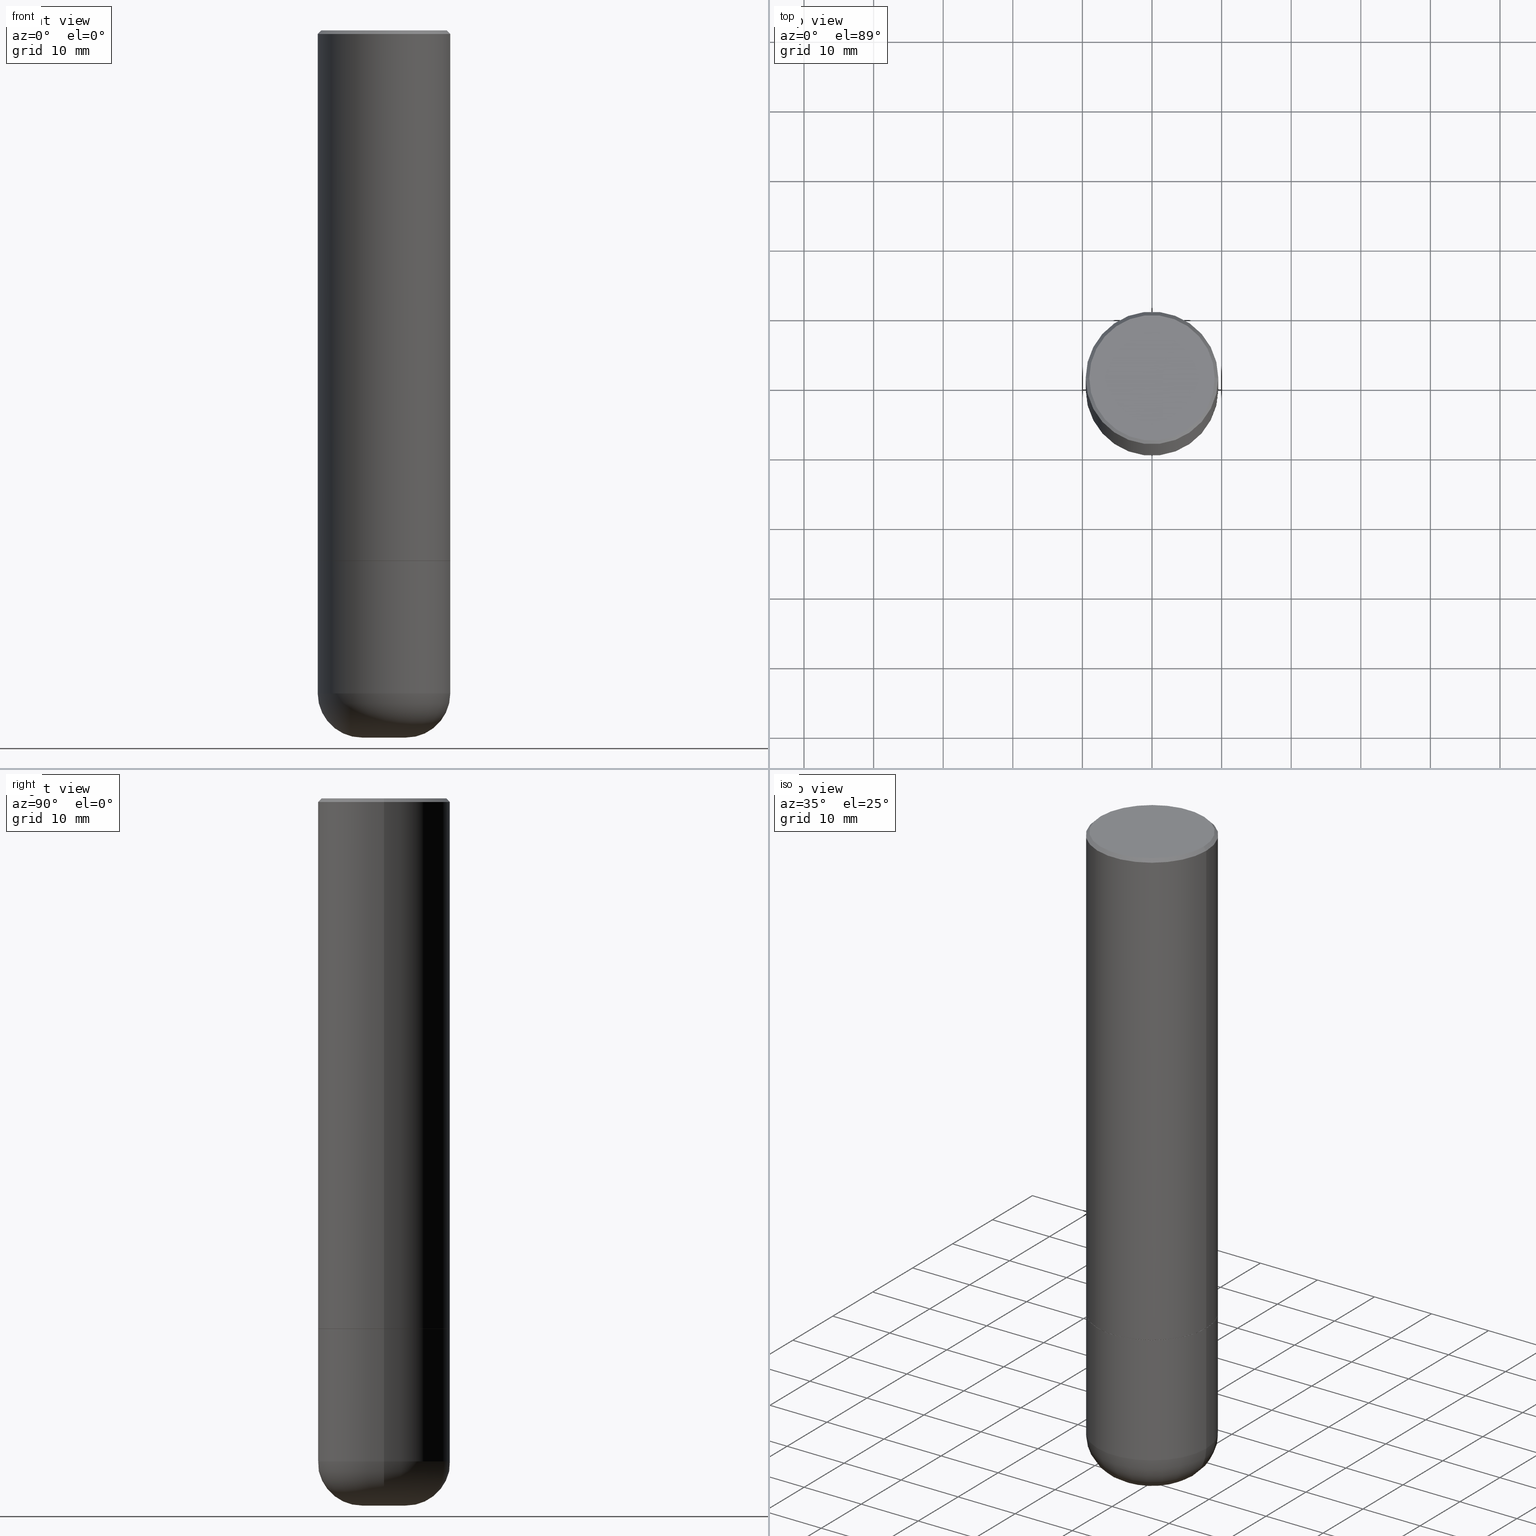
[diagram: canonical four-view strip — front | top / right | iso, engineering-drawing reading convention]
A machine part, canonical four-view strip (front | top / right | iso — engineering-drawing reading convention). The complete STEP part file that produces these views, byte-faithful:
ISO-10303-21;
HEADER;
FILE_DESCRIPTION (( 'STEP AP203' ),
    '1' );
FILE_NAME ('35632.STEP',
    '2022-11-02T20:31:31',
    ( '' ),
    ( '' ),
    'SwSTEP 2.0',
    'SolidWorks 2022',
    '' );
FILE_SCHEMA (( 'CONFIG_CONTROL_DESIGN' ));
ENDSEC;

DATA;
#1 = DIRECTION ( 'NONE',  ( -1.000000000000000000, 6.982962677686264344E-15, 0.000000000000000000 ) ) ;
#2 = EDGE_LOOP ( 'NONE', ( #121, #184, #85 ) ) ;
#3 = FACE_OUTER_BOUND ( 'NONE', #428, .T. ) ;
#4 = DIRECTION ( 'NONE',  ( -2.445468806185136877E-29, 3.491481338843145188E-15, 1.000000000000000000 ) ) ;
#5 = CARTESIAN_POINT ( 'NONE',  ( 7.336406418555408669E-29, -1.047444401652943478E-14, -2.999999999999999556 ) ) ;
#6 = ORIENTED_EDGE ( 'NONE', *, *, #262, .F. ) ;
#7 = EDGE_CURVE ( 'NONE', #183, #138, #66, .T. ) ;
#8 = ORIENTED_EDGE ( 'NONE', *, *, #347, .F. ) ;
#9 = CIRCLE ( 'NONE', #350, 0.3749999999999991673 ) ;
#10 = AXIS2_PLACEMENT_3D ( 'NONE', #463, #148, #72 ) ;
#11 = PERSON_AND_ORGANIZATION ( #105, #33 ) ;
#12 = EDGE_CURVE ( 'NONE', #399, #366, #239, .T. ) ;
#13 = CARTESIAN_POINT ( 'NONE',  ( -0.3749999999999993894, -2.605855821883354597E-15, -2.999000000000000554 ) ) ;
#14 = ORIENTED_EDGE ( 'NONE', *, *, #311, .T. ) ;
#15 = APPLICATION_CONTEXT ( 'configuration controlled 3d designs of mechanical parts and assemblies' ) ;
#16 = ORIENTED_EDGE ( 'NONE', *, *, #95, .T. ) ;
#17 = CARTESIAN_POINT ( 'NONE',  ( 2.478951750578617898E-15, 0.3549999999999990941, -1.237341619044263272E-15 ) ) ;
#18 = DATE_TIME_ROLE ( 'classification_date' ) ;
#19 = DIRECTION ( 'NONE',  ( -0.9993908270190957621, 6.856857904024565937E-15, -0.03489949670249840874 ) ) ;
#20 = APPROVAL_ROLE ( '' ) ;
#21 = DIRECTION ( 'NONE',  ( -1.000000000000000000, 6.982962677686262766E-15, 0.000000000000000000 ) ) ;
#22 = CONICAL_SURFACE ( 'NONE', #103, 0.3739999999999994995, 0.7853981633978239785 ) ;
#23 = DIRECTION ( 'NONE',  ( 1.000000000000000000, -6.982962677686266711E-15, 0.000000000000000000 ) ) ;
#24 = ORIENTED_EDGE ( 'NONE', *, *, #419, .F. ) ;
#25 = CALENDAR_DATE ( 2022, 2, 11 ) ;
#26 = CARTESIAN_POINT ( 'NONE',  ( 7.336406418555408669E-29, -1.047444401652943478E-14, -2.999999999999999556 ) ) ;
#27 = EDGE_CURVE ( 'NONE', #363, #437, #82, .T. ) ;
#28 = VERTEX_POINT ( 'NONE', #474 ) ;
#29 = CARTESIAN_POINT ( 'NONE',  ( -0.3749999999999997780, 2.664535259100374119E-15, -1.844600658845588477E-29 ) ) ;
#30 = CIRCLE ( 'NONE', #298, 0.3749999999999995004 ) ;
#31 = VECTOR ( 'NONE', #19, 39.37007874015748854 ) ;
#32 = DIRECTION ( 'NONE',  ( -2.445468806185136597E-29, 3.491481338843145583E-15, 1.000000000000000000 ) ) ;
#33 = ORGANIZATION ( 'UNSPECIFIED', 'UNSPECIFIED', '' ) ;
#34 = EDGE_CURVE ( 'NONE', #363, #290, #285, .T. ) ;
#35 = DIRECTION ( 'NONE',  ( 1.000000000000000000, -6.982962677686269077E-15, 0.000000000000000000 ) ) ;
#36 = ORIENTED_EDGE ( 'NONE', *, *, #412, .F. ) ;
#37 = CARTESIAN_POINT ( 'NONE',  ( 9.781021626775434250E-29, -1.396470664370530441E-14, -3.999650947105539256 ) ) ;
#38 = AXIS2_PLACEMENT_3D ( 'NONE', #387, #113, #461 ) ;
#39 = ADVANCED_FACE ( 'NONE', ( #249 ), #238, .T. ) ;
#40 = DIRECTION ( 'NONE',  ( -2.445468806185136597E-29, 3.491481338843145583E-15, 1.000000000000000000 ) ) ;
#41 = CARTESIAN_POINT ( 'NONE',  ( 9.781875224740546387E-29, -1.396592535537258233E-14, -4.000000000000000000 ) ) ;
#42 = DIRECTION ( 'NONE',  ( 2.445468806185136597E-29, -3.491481338843145583E-15, -1.000000000000000000 ) ) ;
#43 = DIRECTION ( 'NONE',  ( 1.000000000000000000, -6.982962677686264344E-15, 0.000000000000000000 ) ) ;
#44 = CIRCLE ( 'NONE', #123, 0.1228183661254081405 ) ;
#45 = PLANE ( 'NONE',  #460 ) ;
#46 = EDGE_LOOP ( 'NONE', ( #56, #445, #323, #158 ) ) ;
#47 = COORDINATED_UNIVERSAL_TIME_OFFSET ( 5, 0, .BEHIND. ) ;
#48 = DIRECTION ( 'NONE',  ( -1.000000000000000000, 6.982962677686265922E-15, -4.876176775795935793E-29 ) ) ;
#49 = PERSON_AND_ORGANIZATION_ROLE ( 'design_owner' ) ;
#50 = APPROVAL_DATE_TIME ( #376, #447 ) ;
#51 = CARTESIAN_POINT ( 'NONE',  ( 4.890937612370324831E-31, -6.982962677686364332E-17, -0.02000000000000020858 ) ) ;
#52 = ORIENTED_EDGE ( 'NONE', *, *, #233, .T. ) ;
#53 = DIRECTION ( 'NONE',  ( -2.445468806185136597E-29, 3.491481338843145583E-15, 1.000000000000000000 ) ) ;
#54 = VERTEX_POINT ( 'NONE', #442 ) ;
#55 = CLOSED_SHELL ( 'NONE', ( #39, #342, #332, #488, #296, #389, #325, #378 ) ) ;
#56 = ORIENTED_EDGE ( 'NONE', *, *, #95, .F. ) ;
#57 = CONICAL_SURFACE ( 'NONE', #162, 0.08282086612540803805, 1.535889741755012583 ) ;
#58 = EDGE_CURVE ( 'NONE', #437, #290, #370, .T. ) ;
#59 = DIRECTION ( 'NONE',  ( -2.445468806185136597E-29, 3.491481338843145583E-15, 1.000000000000000000 ) ) ;
#60 = VERTEX_POINT ( 'NONE', #324 ) ;
#61 = DATE_AND_TIME ( #204, #155 ) ;
#62 = DIRECTION ( 'NONE',  ( -2.445468806185136597E-29, 3.491481338843145583E-15, 1.000000000000000000 ) ) ;
#63 = DATE_AND_TIME ( #25, #331 ) ;
#64 = DIRECTION ( 'NONE',  ( 1.000000000000000000, -6.982962677686266711E-15, 0.000000000000000000 ) ) ;
#65 = EDGE_CURVE ( 'NONE', #265, #366, #176, .T. ) ;
#66 = CIRCLE ( 'NONE', #339, 0.3749999999999991673 ) ;
#67 = AXIS2_PLACEMENT_3D ( 'NONE', #266, #344, #1 ) ;
#68 = CARTESIAN_POINT ( 'NONE',  ( 7.336406418555408669E-29, -1.047444401652943478E-14, -2.999999999999999556 ) ) ;
#69 = ORIENTED_EDGE ( 'NONE', *, *, #65, .F. ) ;
#70 = DIRECTION ( 'NONE',  ( 1.000000000000000000, -6.982962677686269077E-15, 0.000000000000000000 ) ) ;
#71 = ORIENTED_EDGE ( 'NONE', *, *, #217, .T. ) ;
#72 = DIRECTION ( 'NONE',  ( 1.000000000000000000, -6.982962677686266711E-15, 0.000000000000000000 ) ) ;
#73 = DIRECTION ( 'NONE',  ( 1.000000000000000000, -6.982962677686265133E-15, 4.876231632512000515E-29 ) ) ;
#74 = EDGE_CURVE ( 'NONE', #424, #54, #431, .T. ) ;
#75 = AXIS2_PLACEMENT_3D ( 'NONE', #414, #411, #142 ) ;
#76 = APPLICATION_PROTOCOL_DEFINITION ( 'international standard', 'config_control_design', 1994, #247 ) ;
#77 = DIRECTION ( 'NONE',  ( -2.438088387897960049E-29, 3.491481338843145188E-15, 1.000000000000000000 ) ) ;
#78 = DIRECTION ( 'NONE',  ( -0.7071067811868130271, 7.493145998871311837E-15, 0.7071067811862817853 ) ) ;
#79 = EDGE_CURVE ( 'NONE', #366, #399, #30, .T. ) ;
#80 = DIRECTION ( 'NONE',  ( 1.000000000000000000, -6.982962677686262766E-15, 0.000000000000000000 ) ) ;
#81 = AXIS2_PLACEMENT_3D ( 'NONE', #487, #145, #137 ) ;
#82 = LINE ( 'NONE', #165, #31 ) ;
#83 = CARTESIAN_POINT ( 'NONE',  ( 0.000000000000000000, 0.000000000000000000, 0.000000000000000000 ) ) ;
#84 = PLANE ( 'NONE',  #263 ) ;
#85 = ORIENTED_EDGE ( 'NONE', *, *, #58, .F. ) ;
#86 = MECHANICAL_CONTEXT ( 'NONE', #15, 'mechanical' ) ;
#87 = DIRECTION ( 'NONE',  ( -1.000000000000000000, 6.982962677686266711E-15, 0.000000000000000000 ) ) ;
#88 = DIRECTION ( 'NONE',  ( 1.000000000000000000, -6.982962677686269077E-15, 0.000000000000000000 ) ) ;
#89 = APPLICATION_PROTOCOL_DEFINITION ( 'international standard', 'config_control_design', 1994, #15 ) ;
#90 = AXIS2_PLACEMENT_3D ( 'NONE', #157, #77, #190 ) ;
#91 = LOCAL_TIME ( 16, 31, 31.00000000000000000, #47 ) ;
#92 = EDGE_CURVE ( 'NONE', #365, #28, #229, .T. ) ;
#93 = FACE_OUTER_BOUND ( 'NONE', #310, .T. ) ;
#94 = ORIENTED_EDGE ( 'NONE', *, *, #79, .F. ) ;
#95 = EDGE_CURVE ( 'NONE', #444, #265, #425, .T. ) ;
#96 = ORIENTED_EDGE ( 'NONE', *, *, #169, .F. ) ;
#97 = DIRECTION ( 'NONE',  ( 1.000000000000000000, -6.982962677686269077E-15, 0.000000000000000000 ) ) ;
#98 = CARTESIAN_POINT ( 'NONE',  ( -0.3749999999999991673, 2.548781377355480407E-15, -0.02000000000000020858 ) ) ;
#99 = CC_DESIGN_PERSON_AND_ORGANIZATION_ASSIGNMENT ( #192, #465, ( #491 ) ) ;
#100 = DIRECTION ( 'NONE',  ( 1.000000000000000000, -6.982962677686264344E-15, 0.000000000000000000 ) ) ;
#101 = CIRCLE ( 'NONE', #379, 0.3750000000000000555 ) ;
#102 = ORIENTED_EDGE ( 'NONE', *, *, #393, .F. ) ;
#103 = AXIS2_PLACEMENT_3D ( 'NONE', #196, #172, #97 ) ;
#104 = DIRECTION ( 'NONE',  ( -2.445468806185136877E-29, 3.491481338843145188E-15, 1.000000000000000000 ) ) ;
#105 = PERSON ( 'UNSPECIFIED', 'UNSPECIFIED', 'UNSPECIFIED', ('UNSPECIFIED'), ('UNSPECIFIED'), ('UNSPECIFIED') ) ;
#106 = CARTESIAN_POINT ( 'NONE',  ( 0.3749999999999992784, -2.618611004132345283E-15, 1.828566290923472279E-29 ) ) ;
#107 = CARTESIAN_POINT ( 'NONE',  ( 7.333960949749226429E-29, -1.047095253519059492E-14, -2.999000000000000554 ) ) ;
#108 = ORIENTED_EDGE ( 'NONE', *, *, #236, .F. ) ;
#109 = CARTESIAN_POINT ( 'NONE',  ( 0.3749999999999991673, -2.642516375941182112E-15, -0.02000000000000020858 ) ) ;
#110 = CIRCLE ( 'NONE', #291, 0.08282086612540803805 ) ;
#111 = CC_DESIGN_APPROVAL ( #454, ( #292 ) ) ;
#112 = DIRECTION ( 'NONE',  ( -2.445468806185136597E-29, 3.491481338843145583E-15, 1.000000000000000000 ) ) ;
#113 = DIRECTION ( 'NONE',  ( 2.445468806185136597E-29, -3.491481338843145583E-15, -1.000000000000000000 ) ) ;
#114 = DIRECTION ( 'NONE',  ( 1.000000000000000000, -6.982962677686267499E-15, 4.876176775795935232E-29 ) ) ;
#115 = CC_DESIGN_SECURITY_CLASSIFICATION ( #292, ( #491 ) ) ;
#116 = FACE_OUTER_BOUND ( 'NONE', #2, .T. ) ;
#117 = ADVANCED_FACE ( 'NONE', ( #287 ), #470, .T. ) ;
#118 = CYLINDRICAL_SURFACE ( 'NONE', #330, 0.3749999999999992784 ) ;
#119 = FACE_OUTER_BOUND ( 'NONE', #275, .T. ) ;
#120 = VERTEX_POINT ( 'NONE', #131 ) ;
#121 = ORIENTED_EDGE ( 'NONE', *, *, #27, .F. ) ;
#122 = VECTOR ( 'NONE', #258, 39.37007874015748143 ) ;
#123 = AXIS2_PLACEMENT_3D ( 'NONE', #400, #53, #43 ) ;
#124 = CALENDAR_DATE ( 2022, 2, 11 ) ;
#125 = APPROVAL_DATE_TIME ( #195, #336 ) ;
#126 = DIRECTION ( 'NONE',  ( -1.000000000000000000, 6.982962677686265922E-15, -4.876176775795935793E-29 ) ) ;
#127 = ORIENTED_EDGE ( 'NONE', *, *, #262, .T. ) ;
#128 = CIRCLE ( 'NONE', #10, 0.3749999999999995004 ) ;
#129 = ORIENTED_EDGE ( 'NONE', *, *, #256, .F. ) ;
#130 = ADVANCED_FACE ( 'NONE', ( #375 ), #385, .T. ) ;
#131 = CARTESIAN_POINT ( 'NONE',  ( 0.3750000000000000555, -1.571169926102186855E-14, -3.750009519233957089 ) ) ;
#132 = COORDINATED_UNIVERSAL_TIME_OFFSET ( 5, 0, .BEHIND. ) ;
#133 = CARTESIAN_POINT ( 'NONE',  ( -0.1228183661254081405, -1.176090068723919562E-14, -4.000000000000000000 ) ) ;
#134 = ORIENTED_EDGE ( 'NONE', *, *, #74, .F. ) ;
#135 = LINE ( 'NONE', #210, #231 ) ;
#136 = SHAPE_DEFINITION_REPRESENTATION ( #462, #458 ) ;
#137 = DIRECTION ( 'NONE',  ( 1.000000000000000000, -6.982962677686262766E-15, 0.000000000000000000 ) ) ;
#138 = VERTEX_POINT ( 'NONE', #367 ) ;
#139 = FACE_OUTER_BOUND ( 'NONE', #481, .T. ) ;
#140 = VECTOR ( 'NONE', #4, 39.37007874015748143 ) ;
#141 = ORIENTED_EDGE ( 'NONE', *, *, #412, .T. ) ;
#142 = DIRECTION ( 'NONE',  ( 1.000000000000000000, -6.982962677686265922E-15, 4.883557194083113462E-29 ) ) ;
#143 = ORIENTED_EDGE ( 'NONE', *, *, #359, .T. ) ;
#144 = ORIENTED_EDGE ( 'NONE', *, *, #393, .T. ) ;
#145 = DIRECTION ( 'NONE',  ( -2.445468806185136597E-29, 3.491481338843145583E-15, 1.000000000000000000 ) ) ;
#146 = CLOSED_SHELL ( 'NONE', ( #242, #117, #152, #301, #453, #383, #273, #130, #303 ) ) ;
#147 = AXIS2_PLACEMENT_3D ( 'NONE', #480, #171, #100 ) ;
#148 = DIRECTION ( 'NONE',  ( -2.445468806185136597E-29, 3.491481338843145583E-15, 1.000000000000000000 ) ) ;
#149 = DIRECTION ( 'NONE',  ( 0.9999619230641714207, -6.890705306874825328E-15, -0.008726535498369011531 ) ) ;
#150 = ORIENTED_EDGE ( 'NONE', *, *, #58, .T. ) ;
#151 = DIRECTION ( 'NONE',  ( -1.000000000000000000, 6.982962677686262766E-15, 0.000000000000000000 ) ) ;
#152 = ADVANCED_FACE ( 'NONE', ( #449 ), #328, .T. ) ;
#153 = DIRECTION ( 'NONE',  ( 1.000000000000000000, -6.982962677686266711E-15, 0.000000000000000000 ) ) ;
#154 = CONICAL_SURFACE ( 'NONE', #67, 0.1228183661254081405, 1.562069680534929894 ) ;
#155 = LOCAL_TIME ( 16, 31, 31.00000000000000000, #407 ) ;
#156 = PRODUCT_RELATED_PRODUCT_CATEGORY ( 'detail', '', ( #245 ) ) ;
#157 = CARTESIAN_POINT ( 'NONE',  ( 7.336406418555408669E-29, -1.047444401652943478E-14, -2.999999999999999556 ) ) ;
#158 = ORIENTED_EDGE ( 'NONE', *, *, #189, .F. ) ;
#159 = EDGE_LOOP ( 'NONE', ( #360, #141, #440, #338 ) ) ;
#160 = EDGE_LOOP ( 'NONE', ( #8, #143, #144, #134 ) ) ;
#161 = VECTOR ( 'NONE', #335, 39.37007874015748854 ) ;
#162 = AXIS2_PLACEMENT_3D ( 'NONE', #307, #274, #151 ) ;
#163 = EDGE_CURVE ( 'NONE', #365, #138, #439, .T. ) ;
#164 = DIRECTION ( 'NONE',  ( 1.000000000000000000, 0.000000000000000000, 0.000000000000000000 ) ) ;
#165 = CARTESIAN_POINT ( 'NONE',  ( -0.08282086612540803805, -1.338637162661792959E-14, -3.999650947105539256 ) ) ;
#166 = COORDINATED_UNIVERSAL_TIME_OFFSET ( 5, 0, .BEHIND. ) ;
#167 = CARTESIAN_POINT ( 'NONE',  ( -0.08282086612540803805, -1.338637162661792959E-14, -3.999650947105539256 ) ) ;
#168 = ORIENTED_EDGE ( 'NONE', *, *, #321, .T. ) ;
#169 = EDGE_CURVE ( 'NONE', #54, #183, #446, .T. ) ;
#170 = APPROVAL_PERSON_ORGANIZATION ( #234, #336, #381 ) ;
#171 = DIRECTION ( 'NONE',  ( -2.445468806185136597E-29, 3.491481338843145583E-15, 1.000000000000000000 ) ) ;
#172 = DIRECTION ( 'NONE',  ( -2.445468806185136597E-29, 3.491481338843145583E-15, 1.000000000000000000 ) ) ;
#173 = APPROVAL_ROLE ( '' ) ;
#174 = DIRECTION ( 'NONE',  ( -2.445468806185136597E-29, 3.491481338843145583E-15, 1.000000000000000000 ) ) ;
#175 = APPROVAL_DATE_TIME ( #63, #454 ) ;
#176 = LINE ( 'NONE', #29, #417 ) ;
#177 = CARTESIAN_POINT ( 'NONE',  ( 7.336406418555408669E-29, -1.047444401652943478E-14, -2.999999999999999556 ) ) ;
#178 = DATE_TIME_ROLE ( 'creation_date' ) ;
#179 = CIRCLE ( 'NONE', #197, 0.3739999999999994995 ) ;
#180 = CARTESIAN_POINT ( 'NONE',  ( -0.1228183661254081405, -1.310828928858444983E-14, -4.000000000000000000 ) ) ;
#181 = ORIENTED_EDGE ( 'NONE', *, *, #198, .F. ) ;
#182 = DIRECTION ( 'NONE',  ( -2.445468806185136597E-29, 3.491481338843145583E-15, 1.000000000000000000 ) ) ;
#183 = VERTEX_POINT ( 'NONE', #410 ) ;
#184 = ORIENTED_EDGE ( 'NONE', *, *, #34, .T. ) ;
#185 = LINE ( 'NONE', #418, #443 ) ;
#186 =( GEOMETRIC_REPRESENTATION_CONTEXT ( 3 ) GLOBAL_UNCERTAINTY_ASSIGNED_CONTEXT ( ( #203 ) ) GLOBAL_UNIT_ASSIGNED_CONTEXT ( ( #240, #271, #316 ) ) REPRESENTATION_CONTEXT ( 'NONE', 'WORKASPACE' ) );
#187 = FACE_OUTER_BOUND ( 'NONE', #471, .T. ) ;
#188 = LINE ( 'NONE', #422, #315 ) ;
#189 = EDGE_CURVE ( 'NONE', #265, #120, #101, .T. ) ;
#190 = DIRECTION ( 'NONE',  ( 1.000000000000000000, -6.982962677686265922E-15, 4.876176775795935793E-29 ) ) ;
#191 = CARTESIAN_POINT ( 'NONE',  ( 0.000000000000000000, 0.000000000000000000, 0.000000000000000000 ) ) ;
#192 = PERSON_AND_ORGANIZATION ( #105, #33 ) ;
#193 = CIRCLE ( 'NONE', #395, 0.2499999999999998612 ) ;
#194 = ORIENTED_EDGE ( 'NONE', *, *, #79, .T. ) ;
#195 = DATE_AND_TIME ( #124, #91 ) ;
#196 = CARTESIAN_POINT ( 'NONE',  ( 7.336406418555408669E-29, -1.047444401652943478E-14, -2.999999999999999556 ) ) ;
#197 = AXIS2_PLACEMENT_3D ( 'NONE', #5, #464, #88 ) ;
#198 = EDGE_CURVE ( 'NONE', #437, #444, #213, .T. ) ;
#199 = FACE_OUTER_BOUND ( 'NONE', #358, .T. ) ;
#200 = DIRECTION ( 'NONE',  ( -2.445468806185136597E-29, 3.491481338843145583E-15, 1.000000000000000000 ) ) ;
#201 = LENGTH_MEASURE_WITH_UNIT ( LENGTH_MEASURE( 0.02539999999999999897 ), #237 );
#202 = ORIENTED_EDGE ( 'NONE', *, *, #355, .F. ) ;
#203 = UNCERTAINTY_MEASURE_WITH_UNIT (LENGTH_MEASURE( 1.000000000000000082E-05 ), #240, 'distance_accuracy_value', 'NONE');
#204 = CALENDAR_DATE ( 2022, 2, 11 ) ;
#205 = DIRECTION ( 'NONE',  ( -2.445468806185136597E-29, 3.491481338843145583E-15, 1.000000000000000000 ) ) ;
#206 = AXIS2_PLACEMENT_3D ( 'NONE', #216, #209, #405 ) ;
#207 = LOCAL_TIME ( 16, 31, 31.00000000000000000, #166 ) ;
#208 = ORIENTED_EDGE ( 'NONE', *, *, #12, .T. ) ;
#209 = DIRECTION ( 'NONE',  ( 7.105427357601001859E-15, 1.000000000000000000, -3.491481338843145583E-15 ) ) ;
#210 = CARTESIAN_POINT ( 'NONE',  ( 0.3739999999999994995, -1.308607205798409720E-14, -2.999999999999999556 ) ) ;
#211 = ORIENTED_EDGE ( 'NONE', *, *, #92, .F. ) ;
#212 = APPROVAL_STATUS ( 'not_yet_approved' ) ;
#213 = LINE ( 'NONE', #180, #161 ) ;
#214 = AXIS2_PLACEMENT_3D ( 'NONE', #476, #62, #369 ) ;
#215 = CONICAL_SURFACE ( 'NONE', #306, 0.3749999999999991673, 0.7853981633974445042 ) ;
#216 = CARTESIAN_POINT ( 'NONE',  ( -0.1250000000000002498, -1.220490983718939015E-14, -3.750009519233957089 ) ) ;
#217 = EDGE_CURVE ( 'NONE', #402, #250, #441, .T. ) ;
#218 = CARTESIAN_POINT ( 'NONE',  ( 0.000000000000000000, 0.000000000000000000, 0.000000000000000000 ) ) ;
#219 = CALENDAR_DATE ( 2022, 2, 11 ) ;
#220 = EDGE_LOOP ( 'NONE', ( #232, #261, #293, #432 ) ) ;
#221 = DIMENSIONAL_EXPONENTS ( 1.000000000000000000, 0.000000000000000000, 0.000000000000000000, 0.000000000000000000, 0.000000000000000000, 0.000000000000000000, 0.000000000000000000 ) ;
#222 = MANIFOLD_SOLID_BREP ( 'Body-Move/Copy2[2]', #55 ) ;
#223 = FACE_OUTER_BOUND ( 'NONE', #281, .T. ) ;
#224 = AXIS2_PLACEMENT_3D ( 'NONE', #68, #373, #35 ) ;
#225 = AXIS2_PLACEMENT_3D ( 'NONE', #333, #205, #448 ) ;
#226 = PLANE ( 'NONE',  #90 ) ;
#227 = CARTESIAN_POINT ( 'NONE',  ( 4.890937612370324831E-31, -6.982962677686364332E-17, -0.02000000000000020858 ) ) ;
#228 = CARTESIAN_POINT ( 'NONE',  ( 0.1250000000000002498, -1.396595859160030187E-14, -3.750009519233957089 ) ) ;
#229 = CIRCLE ( 'NONE', #214, 0.3549999999999990941 ) ;
#230 = FACE_OUTER_BOUND ( 'NONE', #220, .T. ) ;
#231 = VECTOR ( 'NONE', #368, 39.37007874015748854 ) ;
#232 = ORIENTED_EDGE ( 'NONE', *, *, #321, .F. ) ;
#233 = EDGE_CURVE ( 'NONE', #138, #183, #9, .T. ) ;
#234 = PERSON_AND_ORGANIZATION ( #105, #33 ) ;
#235 = CARTESIAN_POINT ( 'NONE',  ( 2.618611004132419436E-15, 0.3749999999999890088, -3.000000000000000888 ) ) ;
#236 = EDGE_CURVE ( 'NONE', #120, #399, #421, .T. ) ;
#237 =( LENGTH_UNIT ( ) NAMED_UNIT ( * ) SI_UNIT ( $, .METRE. ) );
#238 = CONICAL_SURFACE ( 'NONE', #313, 0.3739999999999994995, 0.7853981633978239785 ) ;
#239 = CIRCLE ( 'NONE', #345, 0.3749999999999995004 ) ;
#240 =( CONVERSION_BASED_UNIT ( 'INCH', #201 ) LENGTH_UNIT ( ) NAMED_UNIT ( #221 ) );
#241 = CONICAL_SURFACE ( 'NONE', #361, 0.08282086612540803805, 1.535889741755012583 ) ;
#242 = ADVANCED_FACE ( 'NONE', ( #270 ), #154, .F. ) ;
#243 = CC_DESIGN_PERSON_AND_ORGANIZATION_ASSIGNMENT ( #438, #403, ( #292 ) ) ;
#244 = DIRECTION ( 'NONE',  ( 1.000000000000000000, -6.982962677686266711E-15, 0.000000000000000000 ) ) ;
#245 = PRODUCT ( '35632', '35632', '', ( #86 ) ) ;
#246 = ORIENTED_EDGE ( 'NONE', *, *, #397, .F. ) ;
#247 = APPLICATION_CONTEXT ( 'configuration controlled 3d designs of mechanical parts and assemblies' ) ;
#248 = CARTESIAN_POINT ( 'NONE',  ( 9.781021626775434250E-29, -1.396470664370530441E-14, -3.999650947105539256 ) ) ;
#249 = FACE_OUTER_BOUND ( 'NONE', #435, .T. ) ;
#250 = VERTEX_POINT ( 'NONE', #455 ) ;
#251 = CARTESIAN_POINT ( 'NONE',  ( 9.170531302183963183E-29, -1.309308825688951696E-14, -3.750009519233957089 ) ) ;
#252 = PERSON_AND_ORGANIZATION ( #105, #33 ) ;
#253 = ORIENTED_EDGE ( 'NONE', *, *, #217, .F. ) ;
#254 = AXIS2_PLACEMENT_3D ( 'NONE', #492, #304, #73 ) ;
#255 = ORIENTED_EDGE ( 'NONE', *, *, #279, .F. ) ;
#256 = EDGE_CURVE ( 'NONE', #424, #138, #188, .T. ) ;
#257 = DIRECTION ( 'NONE',  ( 1.000000000000000000, -6.982962677686266711E-15, 0.000000000000000000 ) ) ;
#258 = DIRECTION ( 'NONE',  ( -2.445468806185136877E-29, 3.491481338843145188E-15, 1.000000000000000000 ) ) ;
#259 = CARTESIAN_POINT ( 'NONE',  ( 9.170531302183963183E-29, -1.309308825688951696E-14, -3.750009519233957089 ) ) ;
#260 = ORIENTED_EDGE ( 'NONE', *, *, #27, .T. ) ;
#261 = ORIENTED_EDGE ( 'NONE', *, *, #279, .T. ) ;
#262 = EDGE_CURVE ( 'NONE', #54, #424, #128, .T. ) ;
#263 = AXIS2_PLACEMENT_3D ( 'NONE', #235, #280, #48 ) ;
#264 = DIRECTION ( 'NONE',  ( -2.445468806185136597E-29, 3.491481338843145583E-15, 1.000000000000000000 ) ) ;
#265 = VERTEX_POINT ( 'NONE', #384 ) ;
#266 = CARTESIAN_POINT ( 'NONE',  ( 9.781875224740546387E-29, -1.396592535537258233E-14, -4.000000000000000000 ) ) ;
#267 = CARTESIAN_POINT ( 'NONE',  ( 0.000000000000000000, 0.000000000000000000, 0.000000000000000000 ) ) ;
#268 = ORIENTED_EDGE ( 'NONE', *, *, #479, .T. ) ;
#269 = CIRCLE ( 'NONE', #147, 0.1228183661254081405 ) ;
#270 = FACE_OUTER_BOUND ( 'NONE', #485, .T. ) ;
#271 =( NAMED_UNIT ( * ) PLANE_ANGLE_UNIT ( ) SI_UNIT ( $, .RADIAN. ) );
#272 = CARTESIAN_POINT ( 'NONE',  ( -0.3739999999999994995, -7.817014184786664031E-15, -2.999999999999999556 ) ) ;
#273 = ADVANCED_FACE ( 'NONE', ( #223 ), #380, .T. ) ;
#274 = DIRECTION ( 'NONE',  ( 2.445468806185136597E-29, -3.491481338843145583E-15, -1.000000000000000000 ) ) ;
#275 = EDGE_LOOP ( 'NONE', ( #208, #194 ) ) ;
#276 = AXIS2_PLACEMENT_3D ( 'NONE', #218, #32, #478 ) ;
#277 = APPROVAL_PERSON_ORGANIZATION ( #252, #447, #20 ) ;
#278 = ORIENTED_EDGE ( 'NONE', *, *, #74, .T. ) ;
#279 = EDGE_CURVE ( 'NONE', #290, #437, #110, .T. ) ;
#280 = DIRECTION ( 'NONE',  ( 2.438088387897960049E-29, -3.491481338843145188E-15, -1.000000000000000000 ) ) ;
#281 = EDGE_LOOP ( 'NONE', ( #69, #354, #477, #94 ) ) ;
#282 = AXIS2_PLACEMENT_3D ( 'NONE', #41, #42, #348 ) ;
#283 = ORIENTED_EDGE ( 'NONE', *, *, #397, .T. ) ;
#284 = FACE_OUTER_BOUND ( 'NONE', #160, .T. ) ;
#285 = LINE ( 'NONE', #352, #467 ) ;
#286 = ORIENTED_EDGE ( 'NONE', *, *, #12, .F. ) ;
#287 = FACE_OUTER_BOUND ( 'NONE', #288, .T. ) ;
#288 = EDGE_LOOP ( 'NONE', ( #268, #16, #246, #202 ) ) ;
#289 = DIRECTION ( 'NONE',  ( 1.000000000000000000, -6.982962677686265922E-15, 4.883557194083113462E-29 ) ) ;
#290 = VERTEX_POINT ( 'NONE', #300 ) ;
#291 = AXIS2_PLACEMENT_3D ( 'NONE', #37, #40, #80 ) ;
#292 = SECURITY_CLASSIFICATION ( '', '', #482 ) ;
#293 = ORIENTED_EDGE ( 'NONE', *, *, #198, .T. ) ;
#294 = DIRECTION ( 'NONE',  ( -0.7071067811865447972, 2.468850131082228662E-15, -0.7071067811865501263 ) ) ;
#295 = DIRECTION ( 'NONE',  ( -2.445468806185136597E-29, 3.491481338843145583E-15, 1.000000000000000000 ) ) ;
#296 = ADVANCED_FACE ( 'NONE', ( #187 ), #118, .T. ) ;
#297 = CC_DESIGN_PERSON_AND_ORGANIZATION_ASSIGNMENT ( #429, #396, ( #469 ) ) ;
#298 = AXIS2_PLACEMENT_3D ( 'NONE', #177, #408, #257 ) ;
#299 = VECTOR ( 'NONE', #475, 39.37007874015748854 ) ;
#300 = CARTESIAN_POINT ( 'NONE',  ( 0.08282086612540803805, -1.453289902993236871E-14, -3.999650947105539256 ) ) ;
#301 = ADVANCED_FACE ( 'NONE', ( #116 ), #57, .F. ) ;
#302 = FACE_OUTER_BOUND ( 'NONE', #312, .T. ) ;
#303 = ADVANCED_FACE ( 'NONE', ( #230 ), #351, .F. ) ;
#304 = DIRECTION ( 'NONE',  ( -2.445468806185136597E-29, 3.491481338843145583E-15, 1.000000000000000000 ) ) ;
#305 = CIRCLE ( 'NONE', #254, 0.3549999999999990941 ) ;
#306 = AXIS2_PLACEMENT_3D ( 'NONE', #322, #430, #87 ) ;
#307 = CARTESIAN_POINT ( 'NONE',  ( 9.781021626775434250E-29, -1.396470664370530441E-14, -3.999650947105539256 ) ) ;
#308 = CC_DESIGN_APPROVAL ( #447, ( #491 ) ) ;
#309 = LINE ( 'NONE', #272, #433 ) ;
#310 = EDGE_LOOP ( 'NONE', ( #371, #260, #255 ) ) ;
#311 = EDGE_CURVE ( 'NONE', #28, #365, #305, .T. ) ;
#312 = EDGE_LOOP ( 'NONE', ( #253, #451 ) ) ;
#313 = AXIS2_PLACEMENT_3D ( 'NONE', #26, #182, #70 ) ;
#314 = CARTESIAN_POINT ( 'NONE',  ( 9.773948919231959762E-29, -1.395460869179494729E-14, -3.996758778730467032 ) ) ;
#315 = VECTOR ( 'NONE', #415, 39.37007874015748143 ) ;
#316 =( NAMED_UNIT ( * ) SI_UNIT ( $, .STERADIAN. ) SOLID_ANGLE_UNIT ( ) );
#317 = ORIENTED_EDGE ( 'NONE', *, *, #256, .T. ) ;
#318 = CALENDAR_DATE ( 2022, 2, 11 ) ;
#319 = DIRECTION ( 'NONE',  ( 2.438088387897960049E-29, -3.491481338843145188E-15, -1.000000000000000000 ) ) ;
#320 = AXIS2_PLACEMENT_3D ( 'NONE', #259, #264, #289 ) ;
#321 = EDGE_CURVE ( 'NONE', #290, #60, #185, .T. ) ;
#322 = CARTESIAN_POINT ( 'NONE',  ( 4.890937612370324831E-31, -6.982962677686364332E-17, -0.02000000000000020858 ) ) ;
#323 = ORIENTED_EDGE ( 'NONE', *, *, #355, .T. ) ;
#324 = CARTESIAN_POINT ( 'NONE',  ( 0.1228183661254081405, -1.482356142216071483E-14, -4.000000000000000000 ) ) ;
#325 = ADVANCED_FACE ( 'NONE', ( #302 ), #226, .F. ) ;
#326 = DIRECTION ( 'NONE',  ( 1.000000000000000000, -6.982962677686266711E-15, 0.000000000000000000 ) ) ;
#327 = DATE_AND_TIME ( #318, #207 ) ;
#328 = CYLINDRICAL_SURFACE ( 'NONE', #276, 0.3749999999999997780 ) ;
#329 = APPROVAL_STATUS ( 'not_yet_approved' ) ;
#330 = AXIS2_PLACEMENT_3D ( 'NONE', #340, #343, #114 ) ;
#331 = LOCAL_TIME ( 16, 31, 31.00000000000000000, #364 ) ;
#332 = ADVANCED_FACE ( 'NONE', ( #456 ), #372, .T. ) ;
#333 = CARTESIAN_POINT ( 'NONE',  ( 9.170531302183963183E-29, -1.309308825688951696E-14, -3.750009519233957089 ) ) ;
#334 = PERSON_AND_ORGANIZATION ( #105, #33 ) ;
#335 = DIRECTION ( 'NONE',  ( -0.9999619230641714207, 6.952228252019186602E-15, -0.008726535498369011531 ) ) ;
#336 = APPROVAL ( #459, 'UNSPECIFIED' ) ;
#337 = CYLINDRICAL_SURFACE ( 'NONE', #346, 0.3749999999999992784 ) ;
#338 = ORIENTED_EDGE ( 'NONE', *, *, #163, .F. ) ;
#339 = AXIS2_PLACEMENT_3D ( 'NONE', #51, #200, #23 ) ;
#340 = CARTESIAN_POINT ( 'NONE',  ( 0.000000000000000000, 0.000000000000000000, 0.000000000000000000 ) ) ;
#341 = ORIENTED_EDGE ( 'NONE', *, *, #92, .T. ) ;
#342 = ADVANCED_FACE ( 'NONE', ( #3 ), #337, .T. ) ;
#343 = DIRECTION ( 'NONE',  ( -2.445468806185136597E-29, 3.491481338843145583E-15, 1.000000000000000000 ) ) ;
#344 = DIRECTION ( 'NONE',  ( 2.445468806185136597E-29, -3.491481338843145583E-15, -1.000000000000000000 ) ) ;
#345 = AXIS2_PLACEMENT_3D ( 'NONE', #392, #174, #353 ) ;
#346 = AXIS2_PLACEMENT_3D ( 'NONE', #267, #416, #457 ) ;
#347 = EDGE_CURVE ( 'NONE', #250, #424, #309, .T. ) ;
#348 = DIRECTION ( 'NONE',  ( -1.000000000000000000, 6.982962677686264344E-15, 0.000000000000000000 ) ) ;
#349 = PERSON_AND_ORGANIZATION_ROLE ( 'design_supplier' ) ;
#350 = AXIS2_PLACEMENT_3D ( 'NONE', #227, #112, #153 ) ;
#351 = CONICAL_SURFACE ( 'NONE', #282, 0.1228183661254081405, 1.562069680534929894 ) ;
#352 = CARTESIAN_POINT ( 'NONE',  ( 0.08282086612540803805, -1.453289902993236871E-14, -3.999650947105539256 ) ) ;
#353 = DIRECTION ( 'NONE',  ( 1.000000000000000000, -6.982962677686266711E-15, 0.000000000000000000 ) ) ;
#354 = ORIENTED_EDGE ( 'NONE', *, *, #189, .T. ) ;
#355 = EDGE_CURVE ( 'NONE', #60, #120, #193, .T. ) ;
#356 = ORIENTED_EDGE ( 'NONE', *, *, #7, .F. ) ;
#357 = DIRECTION ( 'NONE',  ( 2.445468806185136597E-29, -3.491481338843145583E-15, -1.000000000000000000 ) ) ;
#358 = EDGE_LOOP ( 'NONE', ( #341, #14 ) ) ;
#359 = EDGE_CURVE ( 'NONE', #250, #402, #179, .T. ) ;
#360 = ORIENTED_EDGE ( 'NONE', *, *, #311, .F. ) ;
#361 = AXIS2_PLACEMENT_3D ( 'NONE', #248, #357, #21 ) ;
#362 = CC_DESIGN_DATE_AND_TIME_ASSIGNMENT ( #61, #18, ( #292 ) ) ;
#363 = VERTEX_POINT ( 'NONE', #314 ) ;
#364 = COORDINATED_UNIVERSAL_TIME_OFFSET ( 5, 0, .BEHIND. ) ;
#365 = VERTEX_POINT ( 'NONE', #473 ) ;
#366 = VERTEX_POINT ( 'NONE', #388 ) ;
#367 = CARTESIAN_POINT ( 'NONE',  ( -0.3749999999999991673, 2.548781377355480407E-15, -0.02000000000000020858 ) ) ;
#368 = DIRECTION ( 'NONE',  ( 0.7071067811868130271, -2.468850131085038979E-15, 0.7071067811862817853 ) ) ;
#369 = DIRECTION ( 'NONE',  ( 1.000000000000000000, -6.982962677686265133E-15, 4.876231632512000515E-29 ) ) ;
#370 = CIRCLE ( 'NONE', #81, 0.08282086612540803805 ) ;
#371 = ORIENTED_EDGE ( 'NONE', *, *, #34, .F. ) ;
#372 = CONICAL_SURFACE ( 'NONE', #38, 0.3749999999999991673, 0.7853981633974445042 ) ;
#373 = DIRECTION ( 'NONE',  ( -2.445468806185136597E-29, 3.491481338843145583E-15, 1.000000000000000000 ) ) ;
#374 = ORIENTED_EDGE ( 'NONE', *, *, #169, .T. ) ;
#375 = FACE_OUTER_BOUND ( 'NONE', #46, .T. ) ;
#376 = DATE_AND_TIME ( #219, #468 ) ;
#377 = DIRECTION ( 'NONE',  ( 1.000000000000000000, -6.982962677686265922E-15, 4.876176775795935793E-29 ) ) ;
#378 = ADVANCED_FACE ( 'NONE', ( #199 ), #45, .F. ) ;
#379 = AXIS2_PLACEMENT_3D ( 'NONE', #251, #59, #64 ) ;
#380 = CYLINDRICAL_SURFACE ( 'NONE', #472, 0.3749999999999997780 ) ;
#381 = APPROVAL_ROLE ( '' ) ;
#382 = DIRECTION ( 'NONE',  ( -2.445468806185136597E-29, 3.491481338843145583E-15, 1.000000000000000000 ) ) ;
#383 = ADVANCED_FACE ( 'NONE', ( #119 ), #84, .F. ) ;
#384 = CARTESIAN_POINT ( 'NONE',  ( -0.3750000000000000555, -9.119230877609100958E-15, -3.750009519233957089 ) ) ;
#385 = TOROIDAL_SURFACE ( 'NONE', #75, 0.1250000000000002498, 0.2499999999999998890 ) ;
#386 = AXIS2_PLACEMENT_3D ( 'NONE', #83, #391, #164 ) ;
#387 = CARTESIAN_POINT ( 'NONE',  ( 4.890937612370324831E-31, -6.982962677686364332E-17, -0.02000000000000020858 ) ) ;
#388 = CARTESIAN_POINT ( 'NONE',  ( -0.3749999999999995004, -9.119230877609102536E-15, -2.999999999999999556 ) ) ;
#389 = ADVANCED_FACE ( 'NONE', ( #284 ), #22, .T. ) ;
#390 = ORIENTED_EDGE ( 'NONE', *, *, #65, .T. ) ;
#391 = DIRECTION ( 'NONE',  ( 0.000000000000000000, 0.000000000000000000, 1.000000000000000000 ) ) ;
#392 = CARTESIAN_POINT ( 'NONE',  ( 7.336406418555408669E-29, -1.047444401652943478E-14, -2.999999999999999556 ) ) ;
#393 = EDGE_CURVE ( 'NONE', #402, #54, #135, .T. ) ;
#394 = CC_DESIGN_PERSON_AND_ORGANIZATION_ASSIGNMENT ( #423, #349, ( #491 ) ) ;
#395 = AXIS2_PLACEMENT_3D ( 'NONE', #228, #427, #244 ) ;
#396 = PERSON_AND_ORGANIZATION_ROLE ( 'creator' ) ;
#397 = EDGE_CURVE ( 'NONE', #120, #265, #483, .T. ) ;
#398 = CC_DESIGN_PERSON_AND_ORGANIZATION_ASSIGNMENT ( #11, #49, ( #245 ) ) ;
#399 = VERTEX_POINT ( 'NONE', #484 ) ;
#400 = CARTESIAN_POINT ( 'NONE',  ( 9.781875224740546387E-29, -1.396592535537258233E-14, -4.000000000000000000 ) ) ;
#401 = MANIFOLD_SOLID_BREP ( 'Body-Move/Copy2[1]', #146 ) ;
#402 = VERTEX_POINT ( 'NONE', #486 ) ;
#403 = PERSON_AND_ORGANIZATION_ROLE ( 'classification_officer' ) ;
#404 = AXIS2_PLACEMENT_3D ( 'NONE', #107, #295, #326 ) ;
#405 = DIRECTION ( 'NONE',  ( -1.000000000000000000, 7.105427357601000281E-15, 0.000000000000000000 ) ) ;
#406 = EDGE_LOOP ( 'NONE', ( #283, #390, #286, #108 ) ) ;
#407 = COORDINATED_UNIVERSAL_TIME_OFFSET ( 5, 0, .BEHIND. ) ;
#408 = DIRECTION ( 'NONE',  ( -2.445468806185136597E-29, 3.491481338843145583E-15, 1.000000000000000000 ) ) ;
#409 = ORIENTED_EDGE ( 'NONE', *, *, #347, .T. ) ;
#410 = CARTESIAN_POINT ( 'NONE',  ( 0.3749999999999991673, -2.642516375941182112E-15, -0.02000000000000020858 ) ) ;
#411 = DIRECTION ( 'NONE',  ( -2.445468806185136597E-29, 3.491481338843145583E-15, 1.000000000000000000 ) ) ;
#412 = EDGE_CURVE ( 'NONE', #28, #183, #450, .T. ) ;
#413 = DESIGN_CONTEXT ( 'detailed design', #247, 'design' ) ;
#414 = CARTESIAN_POINT ( 'NONE',  ( 9.170531302183963183E-29, -1.309308825688951696E-14, -3.750009519233957089 ) ) ;
#415 = DIRECTION ( 'NONE',  ( -2.445468806185136877E-29, 3.491481338843145188E-15, 1.000000000000000000 ) ) ;
#416 = DIRECTION ( 'NONE',  ( -2.445468806185136597E-29, 3.491481338843145583E-15, 1.000000000000000000 ) ) ;
#417 = VECTOR ( 'NONE', #104, 39.37007874015748143 ) ;
#418 = CARTESIAN_POINT ( 'NONE',  ( 0.1228183661254081405, -1.480852051026551656E-14, -4.000000000000000000 ) ) ;
#419 = EDGE_CURVE ( 'NONE', #444, #60, #44, .T. ) ;
#420 = CC_DESIGN_DATE_AND_TIME_ASSIGNMENT ( #327, #178, ( #469 ) ) ;
#421 = LINE ( 'NONE', #489, #140 ) ;
#422 = CARTESIAN_POINT ( 'NONE',  ( -0.3749999999999992784, 2.664535259100370569E-15, -1.844600658845586235E-29 ) ) ;
#423 = PERSON_AND_ORGANIZATION ( #105, #33 ) ;
#424 = VERTEX_POINT ( 'NONE', #13 ) ;
#425 = CIRCLE ( 'NONE', #206, 0.2499999999999998612 ) ;
#426 = ORIENTED_EDGE ( 'NONE', *, *, #163, .T. ) ;
#427 = DIRECTION ( 'NONE',  ( -6.982962677686266711E-15, -1.000000000000000000, 3.491481338843145583E-15 ) ) ;
#428 = EDGE_LOOP ( 'NONE', ( #127, #317, #356, #96 ) ) ;
#429 = PERSON_AND_ORGANIZATION ( #105, #33 ) ;
#430 = DIRECTION ( 'NONE',  ( 2.445468806185136597E-29, -3.491481338843145583E-15, -1.000000000000000000 ) ) ;
#431 = CIRCLE ( 'NONE', #404, 0.3749999999999995004 ) ;
#432 = ORIENTED_EDGE ( 'NONE', *, *, #479, .F. ) ;
#433 = VECTOR ( 'NONE', #78, 39.37007874015748854 ) ;
#434 = APPROVAL_PERSON_ORGANIZATION ( #334, #454, #173 ) ;
#435 = EDGE_LOOP ( 'NONE', ( #71, #409, #6, #102 ) ) ;
#436 = DIRECTION ( 'NONE',  ( 0.9993908270190957621, -6.978169709227532810E-15, -0.03489949670249840874 ) ) ;
#437 = VERTEX_POINT ( 'NONE', #167 ) ;
#438 = PERSON_AND_ORGANIZATION ( #105, #33 ) ;
#439 = LINE ( 'NONE', #98, #490 ) ;
#440 = ORIENTED_EDGE ( 'NONE', *, *, #7, .T. ) ;
#441 = CIRCLE ( 'NONE', #224, 0.3739999999999994995 ) ;
#442 = CARTESIAN_POINT ( 'NONE',  ( 0.3749999999999995004, -1.308956353932294179E-14, -2.999000000000000554 ) ) ;
#443 = VECTOR ( 'NONE', #149, 39.37007874015748854 ) ;
#444 = VERTEX_POINT ( 'NONE', #133 ) ;
#445 = ORIENTED_EDGE ( 'NONE', *, *, #419, .T. ) ;
#446 = LINE ( 'NONE', #106, #122 ) ;
#447 = APPROVAL ( #329, 'UNSPECIFIED' ) ;
#448 = DIRECTION ( 'NONE',  ( 1.000000000000000000, -6.982962677686266711E-15, 0.000000000000000000 ) ) ;
#449 = FACE_OUTER_BOUND ( 'NONE', #406, .T. ) ;
#450 = LINE ( 'NONE', #109, #299 ) ;
#451 = ORIENTED_EDGE ( 'NONE', *, *, #359, .F. ) ;
#452 = CC_DESIGN_APPROVAL ( #336, ( #469 ) ) ;
#453 = ADVANCED_FACE ( 'NONE', ( #93 ), #241, .F. ) ;
#454 = APPROVAL ( #212, 'UNSPECIFIED' ) ;
#455 = CARTESIAN_POINT ( 'NONE',  ( -0.3739999999999994995, -7.811715730438443207E-15, -2.999999999999999556 ) ) ;
#456 = FACE_OUTER_BOUND ( 'NONE', #159, .T. ) ;
#457 = DIRECTION ( 'NONE',  ( 1.000000000000000000, -6.982962677686267499E-15, 4.876176775795935232E-29 ) ) ;
#458 = ADVANCED_BREP_SHAPE_REPRESENTATION ( '35632', ( #401, #222, #386 ), #186 ) ;
#459 = APPROVAL_STATUS ( 'not_yet_approved' ) ;
#460 = AXIS2_PLACEMENT_3D ( 'NONE', #17, #319, #126 ) ;
#461 = DIRECTION ( 'NONE',  ( -1.000000000000000000, 6.982962677686266711E-15, 0.000000000000000000 ) ) ;
#462 = PRODUCT_DEFINITION_SHAPE ( 'NONE', 'NONE',  #469 ) ;
#463 = CARTESIAN_POINT ( 'NONE',  ( 7.333960949749226429E-29, -1.047095253519059492E-14, -2.999000000000000554 ) ) ;
#464 = DIRECTION ( 'NONE',  ( -2.445468806185136597E-29, 3.491481338843145583E-15, 1.000000000000000000 ) ) ;
#465 = PERSON_AND_ORGANIZATION_ROLE ( 'creator' ) ;
#466 = ORIENTED_EDGE ( 'NONE', *, *, #233, .F. ) ;
#467 = VECTOR ( 'NONE', #436, 39.37007874015748854 ) ;
#468 = LOCAL_TIME ( 16, 31, 31.00000000000000000, #132 ) ;
#469 = PRODUCT_DEFINITION ( 'UNKNOWN', '', #491, #413 ) ;
#470 = TOROIDAL_SURFACE ( 'NONE', #320, 0.1250000000000002498, 0.2499999999999998890 ) ;
#471 = EDGE_LOOP ( 'NONE', ( #129, #278, #374, #466 ) ) ;
#472 = AXIS2_PLACEMENT_3D ( 'NONE', #191, #382, #377 ) ;
#473 = CARTESIAN_POINT ( 'NONE',  ( -0.3549999999999990941, 2.513866563967049153E-15, 4.268512490082953109E-18 ) ) ;
#474 = CARTESIAN_POINT ( 'NONE',  ( 0.3549999999999990941, -2.538996582575035132E-15, 4.268512490117958041E-18 ) ) ;
#475 = DIRECTION ( 'NONE',  ( 0.7071067811865447972, -7.319954787623245001E-15, -0.7071067811865501263 ) ) ;
#476 = CARTESIAN_POINT ( 'NONE',  ( -1.043851414335219820E-46, 1.490343170380447200E-32, 4.268512490100411279E-18 ) ) ;
#477 = ORIENTED_EDGE ( 'NONE', *, *, #236, .T. ) ;
#478 = DIRECTION ( 'NONE',  ( 1.000000000000000000, -6.982962677686265922E-15, 4.876176775795935793E-29 ) ) ;
#479 = EDGE_CURVE ( 'NONE', #60, #444, #269, .T. ) ;
#480 = CARTESIAN_POINT ( 'NONE',  ( 9.781875224740546387E-29, -1.396592535537258233E-14, -4.000000000000000000 ) ) ;
#481 = EDGE_LOOP ( 'NONE', ( #36, #211, #426, #52 ) ) ;
#482 = SECURITY_CLASSIFICATION_LEVEL ( 'unclassified' ) ;
#483 = CIRCLE ( 'NONE', #225, 0.3750000000000000555 ) ;
#484 = CARTESIAN_POINT ( 'NONE',  ( 0.3749999999999995004, -1.309305502066178164E-14, -2.999999999999999556 ) ) ;
#485 = EDGE_LOOP ( 'NONE', ( #150, #168, #24, #181 ) ) ;
#486 = CARTESIAN_POINT ( 'NONE',  ( 0.3739999999999994995, -1.308607205798409720E-14, -2.999999999999999556 ) ) ;
#487 = CARTESIAN_POINT ( 'NONE',  ( 9.781021626775434250E-29, -1.396470664370530441E-14, -3.999650947105539256 ) ) ;
#488 = ADVANCED_FACE ( 'NONE', ( #139 ), #215, .T. ) ;
#489 = CARTESIAN_POINT ( 'NONE',  ( 0.3749999999999997780, -2.618611004132348044E-15, 1.828566290923474801E-29 ) ) ;
#490 = VECTOR ( 'NONE', #294, 39.37007874015748854 ) ;
#491 = PRODUCT_DEFINITION_FORMATION_WITH_SPECIFIED_SOURCE ( 'ANY', '', #245, .NOT_KNOWN. ) ;
#492 = CARTESIAN_POINT ( 'NONE',  ( -1.043851414335219820E-46, 1.490343170380447200E-32, 4.268512490100411279E-18 ) ) ;
ENDSEC;
END-ISO-10303-21;
